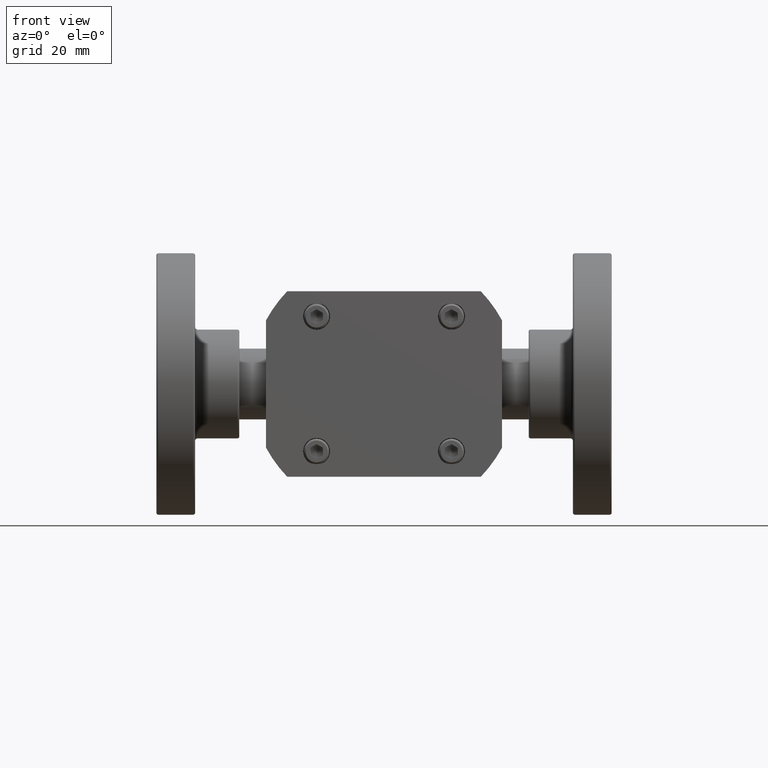
[diagram: clean part render]
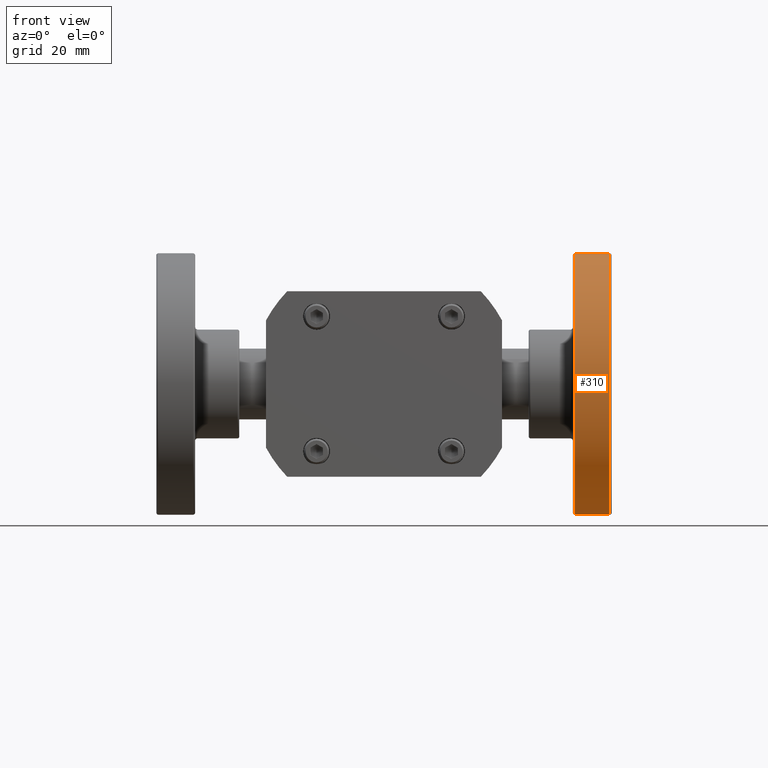
[diagram: same view with one face highlighted and labeled with its STEP entity id]
A machine part, front view. The second image highlights one B-rep face of the part: STEP entity #310.
In plain terms, the highlighted cylindrical surface (bore or boss wall) has radius 49.276 mm, axis along (-1, 0, -0).
Its self-contained STEP definition (entity closure, byte-faithful):
#279=CARTESIAN_POINT('',(3.345000000000005,2.271787155501901,-1.371787155501896));
#280=VERTEX_POINT('',#279);
#281=CARTESIAN_POINT('',(3.345000000000000,0.899999999999998,5.444850E-015));
#282=DIRECTION('',(1.0,-1.598150E-015,1.598150E-015));
#283=DIRECTION('',(-2.260125E-015,-0.707106781186548,0.707106781186547));
#284=AXIS2_PLACEMENT_3D('',#281,#282,#283);
#285=CIRCLE('',#284,1.940000000000000);
#286=EDGE_CURVE('',#280,#280,#285,.T.);
#291=CARTESIAN_POINT('',(3.087500000000000,0.899999999999998,4.850924E-015));
#292=DIRECTION('',(-1.0,8.897910E-016,-2.306509E-015));
#293=DIRECTION('',(2.260125E-015,0.707106781186548,-0.707106781186547));
#294=AXIS2_PLACEMENT_3D('',#291,#292,#293);
#295=CYLINDRICAL_SURFACE('',#294,1.940000000000000);
#296=CARTESIAN_POINT('',(2.830000000000005,2.271787155501901,-1.371787155501898));
#297=VERTEX_POINT('',#296);
#298=CARTESIAN_POINT('',(2.830000000000000,0.899999999999998,4.256998E-015));
#299=DIRECTION('',(-1.0,1.598150E-015,-1.598150E-015));
#300=DIRECTION('',(-2.260125E-015,-0.707106781186548,0.707106781186547));
#301=AXIS2_PLACEMENT_3D('',#298,#299,#300);
#302=CIRCLE('',#301,1.940000000000000);
#303=EDGE_CURVE('',#297,#297,#302,.T.);
#304=ORIENTED_EDGE('',*,*,#303,.F.);
#305=EDGE_LOOP('',(#304));
#306=FACE_OUTER_BOUND('',#305,.T.);
#307=ORIENTED_EDGE('',*,*,#286,.F.);
#308=EDGE_LOOP('',(#307));
#309=FACE_BOUND('',#308,.T.);
#310=ADVANCED_FACE('',(#306,#309),#295,.T.);